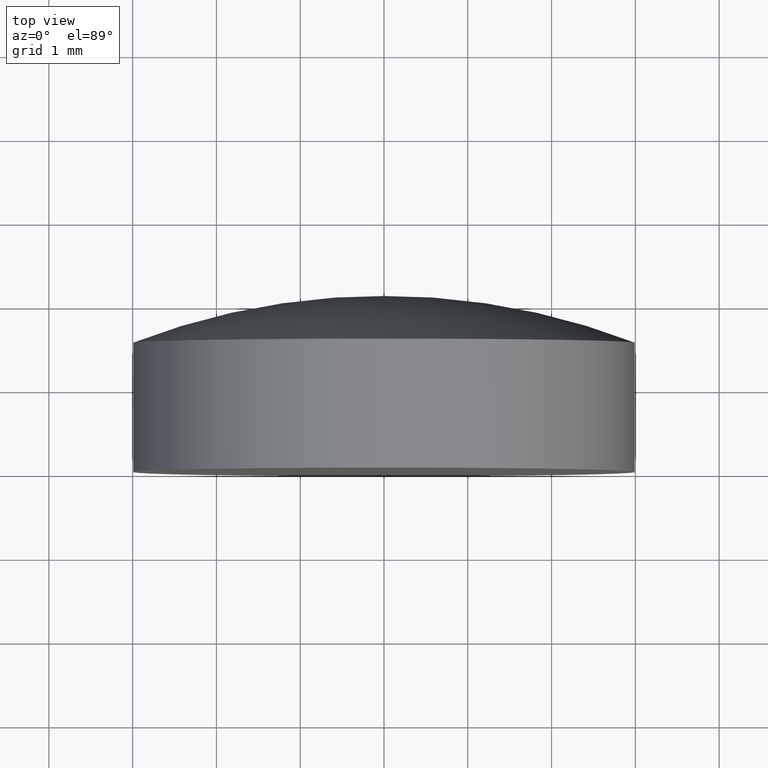
[diagram: clean part render]
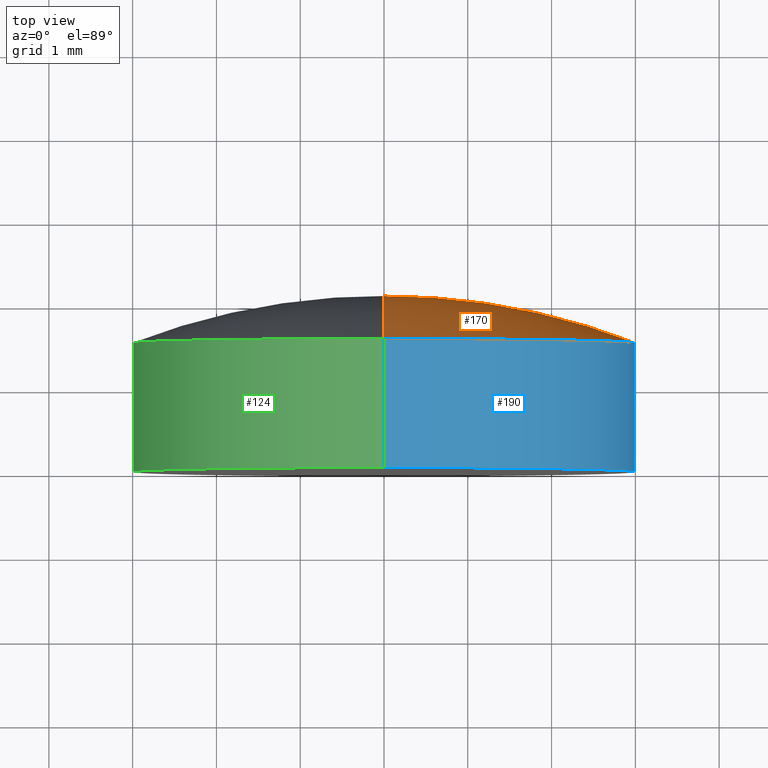
[diagram: same view with three faces highlighted in distinct colors, each labeled with its STEP entity id]
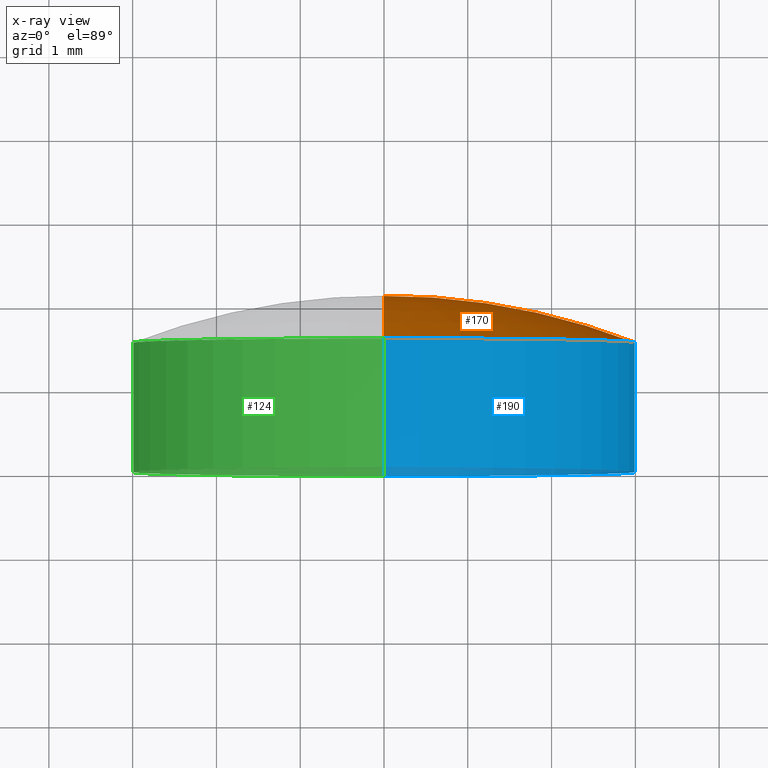
[diagram: x-ray of the same camera — body ghosted, the three highlighted faces saturated]
A machine part, top view with three faces highlighted in distinct colors.
The next image is the same camera in x-ray (body ghosted, the three faces saturated) — at least one of them is partly hidden behind the body in this view.
Their STEP definitions:

[orange] entity #170 — the highlighted toroidal blend (fillet) surface has major radius 0.0104 mm and minor (blend) radius 8.26 mm.
#2 = EDGE_CURVE ( 'NONE', #73, #144, #4, .T. ) ;
#4 = CIRCLE ( 'NONE', #179, 8.259999999999999787 ) ;
#6 = EDGE_LOOP ( 'NONE', ( #70, #161, #100 ) ) ;
#31 = DIRECTION ( 'NONE',  ( 1.224646799147353207E-16, 0.000000000000000000, -1.000000000000000000 ) ) ;
#41 = DIRECTION ( 'NONE',  ( 0.000000000000000000, 0.000000000000000000, 1.000000000000000000 ) ) ;
#47 = DIRECTION ( 'NONE',  ( 1.000000000000000000, 0.000000000000000000, 1.224646799147353207E-16 ) ) ;
#51 = CIRCLE ( 'NONE', #123, 2.999999999999998668 ) ;
#54 = VERTEX_POINT ( 'NONE', #163 ) ;
#67 = TOROIDAL_SURFACE ( 'NONE', #184, 0.01040122243469885840, 8.259999999999999787 ) ;
#70 = ORIENTED_EDGE ( 'NONE', *, *, #84, .T. ) ;
#71 = CIRCLE ( 'NONE', #153, 8.259999999999999787 ) ;
#73 = VERTEX_POINT ( 'NONE', #146 ) ;
#84 = EDGE_CURVE ( 'NONE', #73, #54, #51, .T. ) ;
#100 = ORIENTED_EDGE ( 'NONE', *, *, #2, .F. ) ;
#104 = DIRECTION ( 'NONE',  ( -0.000000000000000000, 1.000000000000000000, -0.000000000000000000 ) ) ;
#107 = CARTESIAN_POINT ( 'NONE',  ( 2.286988957586610915E-16, 2.099999999999997868, 0.000000000000000000 ) ) ;
#108 = CARTESIAN_POINT ( 'NONE',  ( 0.000000000000000000, 1.539999999999998037, 0.000000000000000000 ) ) ;
#117 = DIRECTION ( 'NONE',  ( -1.000000000000000000, 0.000000000000000000, 0.000000000000000000 ) ) ;
#119 = DIRECTION ( 'NONE',  ( 0.000000000000000000, 0.000000000000000000, 1.000000000000000000 ) ) ;
#122 = FACE_OUTER_BOUND ( 'NONE', #6, .T. ) ;
#123 = AXIS2_PLACEMENT_3D ( 'NONE', #108, #167, #151 ) ;
#132 = CARTESIAN_POINT ( 'NONE',  ( 0.000000000000000000, -6.159993451242676166, 0.01040122243469885840 ) ) ;
#133 = CARTESIAN_POINT ( 'NONE',  ( 0.000000000000000000, -6.159993451242676166, 0.000000000000000000 ) ) ;
#137 = CARTESIAN_POINT ( 'NONE',  ( 1.273782376187359739E-18, -6.159993451242676166, -0.01040122243469885840 ) ) ;
#144 = VERTEX_POINT ( 'NONE', #107 ) ;
#146 = CARTESIAN_POINT ( 'NONE',  ( 0.000000000000000000, 1.539999999999998037, 2.999999999999998668 ) ) ;
#151 = DIRECTION ( 'NONE',  ( 0.000000000000000000, 0.000000000000000000, 1.000000000000000000 ) ) ;
#153 = AXIS2_PLACEMENT_3D ( 'NONE', #137, #47, #31 ) ;
#156 = EDGE_CURVE ( 'NONE', #54, #144, #71, .T. ) ;
#161 = ORIENTED_EDGE ( 'NONE', *, *, #156, .T. ) ;
#163 = CARTESIAN_POINT ( 'NONE',  ( 3.673940397442058389E-16, 1.539999999999998037, -2.999999999999998668 ) ) ;
#167 = DIRECTION ( 'NONE',  ( -0.000000000000000000, 1.000000000000000000, -0.000000000000000000 ) ) ;
#170 = ADVANCED_FACE ( 'NONE', ( #122 ), #67, .T. ) ;
#179 = AXIS2_PLACEMENT_3D ( 'NONE', #132, #117, #41 ) ;
#184 = AXIS2_PLACEMENT_3D ( 'NONE', #133, #104, #119 ) ;

[blue] entity #190 — the highlighted cylindrical surface (partial cylindrical patch) has radius 3 mm, axis along (-0, 1, -0).
#21 = VERTEX_POINT ( 'NONE', #102 ) ;
#23 = LINE ( 'NONE', #87, #139 ) ;
#29 = DIRECTION ( 'NONE',  ( -0.000000000000000000, 1.000000000000000000, -0.000000000000000000 ) ) ;
#42 = DIRECTION ( 'NONE',  ( -0.000000000000000000, 1.000000000000000000, -0.000000000000000000 ) ) ;
#45 = CYLINDRICAL_SURFACE ( 'NONE', #99, 2.999999999999999112 ) ;
#46 = LINE ( 'NONE', #136, #172 ) ;
#51 = CIRCLE ( 'NONE', #123, 2.999999999999998668 ) ;
#54 = VERTEX_POINT ( 'NONE', #163 ) ;
#63 = CIRCLE ( 'NONE', #94, 3.000000000000000000 ) ;
#64 = EDGE_CURVE ( 'NONE', #21, #73, #23, .T. ) ;
#72 = ORIENTED_EDGE ( 'NONE', *, *, #138, .T. ) ;
#73 = VERTEX_POINT ( 'NONE', #146 ) ;
#77 = CARTESIAN_POINT ( 'NONE',  ( 3.673940397442059868E-16, -4.336808689942017736E-16, -3.000000000000000000 ) ) ;
#84 = EDGE_CURVE ( 'NONE', #73, #54, #51, .T. ) ;
#86 = DIRECTION ( 'NONE',  ( -0.000000000000000000, 1.000000000000000000, -0.000000000000000000 ) ) ;
#87 = CARTESIAN_POINT ( 'NONE',  ( 0.000000000000000000, 2.100000000000000089, 2.999999999999999112 ) ) ;
#90 = DIRECTION ( 'NONE',  ( 0.000000000000000000, 0.000000000000000000, 1.000000000000000000 ) ) ;
#94 = AXIS2_PLACEMENT_3D ( 'NONE', #118, #29, #90 ) ;
#99 = AXIS2_PLACEMENT_3D ( 'NONE', #166, #42, #195 ) ;
#102 = CARTESIAN_POINT ( 'NONE',  ( 0.000000000000000000, -4.336808689942017736E-16, 3.000000000000000000 ) ) ;
#108 = CARTESIAN_POINT ( 'NONE',  ( 0.000000000000000000, 1.539999999999998037, 0.000000000000000000 ) ) ;
#115 = VERTEX_POINT ( 'NONE', #77 ) ;
#118 = CARTESIAN_POINT ( 'NONE',  ( 0.000000000000000000, -4.336808689942017736E-16, 0.000000000000000000 ) ) ;
#123 = AXIS2_PLACEMENT_3D ( 'NONE', #108, #167, #151 ) ;
#136 = CARTESIAN_POINT ( 'NONE',  ( 3.673940397442058882E-16, 2.100000000000000089, -2.999999999999999112 ) ) ;
#138 = EDGE_CURVE ( 'NONE', #115, #54, #46, .T. ) ;
#139 = VECTOR ( 'NONE', #86, 1000.000000000000000 ) ;
#146 = CARTESIAN_POINT ( 'NONE',  ( 0.000000000000000000, 1.539999999999998037, 2.999999999999998668 ) ) ;
#151 = DIRECTION ( 'NONE',  ( 0.000000000000000000, 0.000000000000000000, 1.000000000000000000 ) ) ;
#152 = DIRECTION ( 'NONE',  ( -0.000000000000000000, 1.000000000000000000, -0.000000000000000000 ) ) ;
#157 = ORIENTED_EDGE ( 'NONE', *, *, #64, .F. ) ;
#162 = ORIENTED_EDGE ( 'NONE', *, *, #84, .F. ) ;
#163 = CARTESIAN_POINT ( 'NONE',  ( 3.673940397442058389E-16, 1.539999999999998037, -2.999999999999998668 ) ) ;
#164 = ORIENTED_EDGE ( 'NONE', *, *, #193, .T. ) ;
#166 = CARTESIAN_POINT ( 'NONE',  ( 0.000000000000000000, 2.100000000000000089, 0.000000000000000000 ) ) ;
#167 = DIRECTION ( 'NONE',  ( -0.000000000000000000, 1.000000000000000000, -0.000000000000000000 ) ) ;
#172 = VECTOR ( 'NONE', #152, 1000.000000000000000 ) ;
#181 = FACE_OUTER_BOUND ( 'NONE', #194, .T. ) ;
#190 = ADVANCED_FACE ( 'NONE', ( #181 ), #45, .T. ) ;
#193 = EDGE_CURVE ( 'NONE', #21, #115, #63, .T. ) ;
#194 = EDGE_LOOP ( 'NONE', ( #164, #72, #162, #157 ) ) ;
#195 = DIRECTION ( 'NONE',  ( 0.000000000000000000, 0.000000000000000000, 1.000000000000000000 ) ) ;

[green] entity #124 — the highlighted cylindrical surface (partial cylindrical patch) has radius 3 mm, axis along (-0, 1, -0).
#3 = EDGE_LOOP ( 'NONE', ( #192, #131, #18, #175 ) ) ;
#9 = CARTESIAN_POINT ( 'NONE',  ( 0.000000000000000000, -4.336808689942017736E-16, 0.000000000000000000 ) ) ;
#12 = DIRECTION ( 'NONE',  ( -0.000000000000000000, 1.000000000000000000, -0.000000000000000000 ) ) ;
#18 = ORIENTED_EDGE ( 'NONE', *, *, #64, .T. ) ;
#21 = VERTEX_POINT ( 'NONE', #102 ) ;
#23 = LINE ( 'NONE', #87, #139 ) ;
#30 = CYLINDRICAL_SURFACE ( 'NONE', #128, 2.999999999999999112 ) ;
#32 = EDGE_CURVE ( 'NONE', #115, #21, #96, .T. ) ;
#34 = AXIS2_PLACEMENT_3D ( 'NONE', #59, #78, #182 ) ;
#43 = CIRCLE ( 'NONE', #34, 2.999999999999998668 ) ;
#46 = LINE ( 'NONE', #136, #172 ) ;
#54 = VERTEX_POINT ( 'NONE', #163 ) ;
#55 = DIRECTION ( 'NONE',  ( -0.000000000000000000, 1.000000000000000000, -0.000000000000000000 ) ) ;
#58 = DIRECTION ( 'NONE',  ( 0.000000000000000000, 0.000000000000000000, 1.000000000000000000 ) ) ;
#59 = CARTESIAN_POINT ( 'NONE',  ( 0.000000000000000000, 1.539999999999998037, 0.000000000000000000 ) ) ;
#64 = EDGE_CURVE ( 'NONE', #21, #73, #23, .T. ) ;
#73 = VERTEX_POINT ( 'NONE', #146 ) ;
#77 = CARTESIAN_POINT ( 'NONE',  ( 3.673940397442059868E-16, -4.336808689942017736E-16, -3.000000000000000000 ) ) ;
#78 = DIRECTION ( 'NONE',  ( -0.000000000000000000, 1.000000000000000000, -0.000000000000000000 ) ) ;
#86 = DIRECTION ( 'NONE',  ( -0.000000000000000000, 1.000000000000000000, -0.000000000000000000 ) ) ;
#87 = CARTESIAN_POINT ( 'NONE',  ( 0.000000000000000000, 2.100000000000000089, 2.999999999999999112 ) ) ;
#93 = CARTESIAN_POINT ( 'NONE',  ( 0.000000000000000000, 2.100000000000000089, 0.000000000000000000 ) ) ;
#95 = FACE_OUTER_BOUND ( 'NONE', #3, .T. ) ;
#96 = CIRCLE ( 'NONE', #111, 3.000000000000000000 ) ;
#102 = CARTESIAN_POINT ( 'NONE',  ( 0.000000000000000000, -4.336808689942017736E-16, 3.000000000000000000 ) ) ;
#111 = AXIS2_PLACEMENT_3D ( 'NONE', #9, #55, #148 ) ;
#115 = VERTEX_POINT ( 'NONE', #77 ) ;
#124 = ADVANCED_FACE ( 'NONE', ( #95 ), #30, .T. ) ;
#128 = AXIS2_PLACEMENT_3D ( 'NONE', #93, #12, #58 ) ;
#131 = ORIENTED_EDGE ( 'NONE', *, *, #32, .T. ) ;
#136 = CARTESIAN_POINT ( 'NONE',  ( 3.673940397442058882E-16, 2.100000000000000089, -2.999999999999999112 ) ) ;
#138 = EDGE_CURVE ( 'NONE', #115, #54, #46, .T. ) ;
#139 = VECTOR ( 'NONE', #86, 1000.000000000000000 ) ;
#146 = CARTESIAN_POINT ( 'NONE',  ( 0.000000000000000000, 1.539999999999998037, 2.999999999999998668 ) ) ;
#148 = DIRECTION ( 'NONE',  ( 0.000000000000000000, 0.000000000000000000, 1.000000000000000000 ) ) ;
#152 = DIRECTION ( 'NONE',  ( -0.000000000000000000, 1.000000000000000000, -0.000000000000000000 ) ) ;
#154 = EDGE_CURVE ( 'NONE', #54, #73, #43, .T. ) ;
#163 = CARTESIAN_POINT ( 'NONE',  ( 3.673940397442058389E-16, 1.539999999999998037, -2.999999999999998668 ) ) ;
#172 = VECTOR ( 'NONE', #152, 1000.000000000000000 ) ;
#175 = ORIENTED_EDGE ( 'NONE', *, *, #154, .F. ) ;
#182 = DIRECTION ( 'NONE',  ( 0.000000000000000000, 0.000000000000000000, 1.000000000000000000 ) ) ;
#192 = ORIENTED_EDGE ( 'NONE', *, *, #138, .F. ) ;